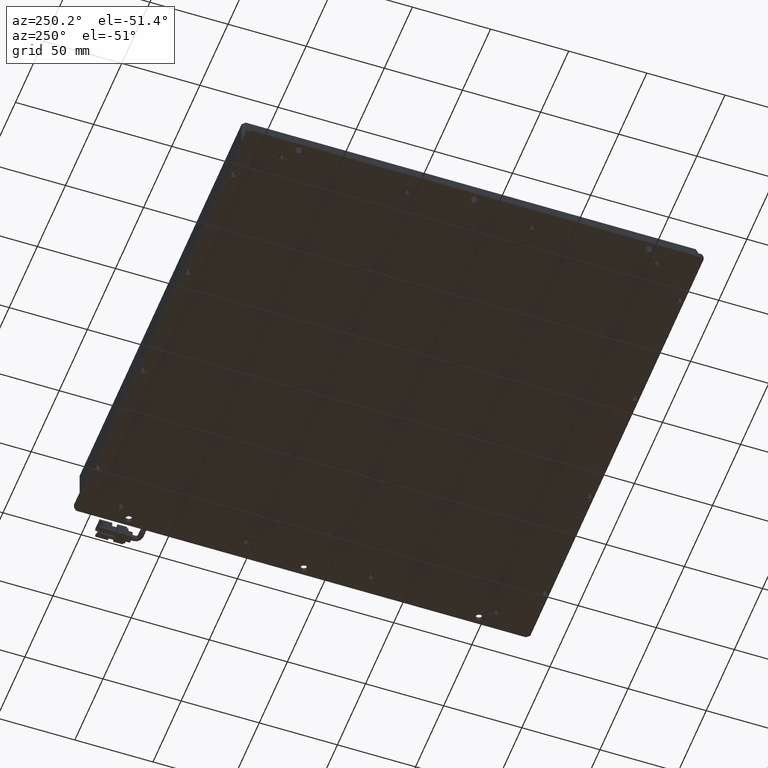
[diagram: clean part render]
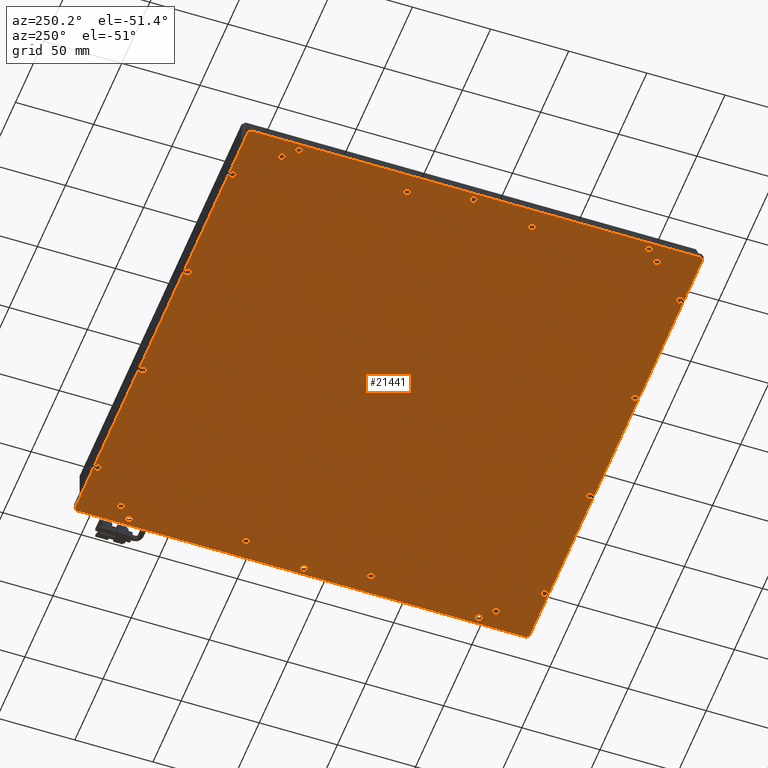
[diagram: same view with one face highlighted and labeled with its STEP entity id]
A machine part, auxiliary view. The second image highlights one B-rep face of the part: STEP entity #21441.
In plain terms, the highlighted planar face has unit normal (0, 0, -1).
Its self-contained STEP definition (entity closure, byte-faithful):
#33 = VERTEX_POINT ( 'NONE', #22639 ) ;
#111 = AXIS2_PLACEMENT_3D ( 'NONE', #13315, #4190, #17166 ) ;
#114 = EDGE_CURVE ( 'NONE', #14088, #4893, #14909, .T. ) ;
#115 = CARTESIAN_POINT ( 'NONE',  ( 75.11932287367429200, 156.2698045692266400, -10.00000000005456300 ) ) ;
#138 = CARTESIAN_POINT ( 'NONE',  ( -9.280677126315806500, -129.7301954307733600, -9.999999999971350900 ) ) ;
#198 = EDGE_CURVE ( 'NONE', #13900, #10766, #13440, .T. ) ;
#218 = AXIS2_PLACEMENT_3D ( 'NONE', #5789, #13150, #3948 ) ;
#233 = VERTEX_POINT ( 'NONE', #12751 ) ;
#279 = FACE_BOUND ( 'NONE', #16320, .T. ) ;
#315 = CARTESIAN_POINT ( 'NONE',  ( -84.88067712638391500, -129.7301954307733600, -10.00000000002819400 ) ) ;
#511 = VECTOR ( 'NONE', #12608, 1000.000000000000000 ) ;
#559 = CARTESIAN_POINT ( 'NONE',  ( -118.0806771263419100, 13.26980456922663400, -10.00000000002819400 ) ) ;
#572 = DIRECTION ( 'NONE',  ( -0.0000000000000000000, -0.0000000000000000000, 1.000000000000000000 ) ) ;
#595 = VERTEX_POINT ( 'NONE', #315 ) ;
#640 = EDGE_LOOP ( 'NONE', ( #19062, #3199 ) ) ;
#728 = CIRCLE ( 'NONE', #22733, 2.199999999982535500 ) ;
#870 = CARTESIAN_POINT ( 'NONE',  ( -112.2806771263244500, -106.7301954307733900, -10.00000000008503800 ) ) ;
#874 = FACE_BOUND ( 'NONE', #23639, .T. ) ;
#907 = DIRECTION ( 'NONE',  ( -0.0000000000000000000, -0.0000000000000000000, 1.000000000000000000 ) ) ;
#983 = EDGE_CURVE ( 'NONE', #4893, #14088, #8795, .T. ) ;
#1077 = EDGE_CURVE ( 'NONE', #18001, #21614, #18825, .T. ) ;
#1113 = DIRECTION ( 'NONE',  ( 1.000000000000000000, 0.0000000000000000000, 0.0000000000000000000 ) ) ;
#1118 = VERTEX_POINT ( 'NONE', #1905 ) ;
#1126 = ORIENTED_EDGE ( 'NONE', *, *, #18610, .T. ) ;
#1136 = EDGE_CURVE ( 'NONE', #19636, #5223, #728, .T. ) ;
#1179 = ORIENTED_EDGE ( 'NONE', *, *, #10700, .T. ) ;
#1232 = AXIS2_PLACEMENT_3D ( 'NONE', #9703, #2259, #18709 ) ;
#1305 = CARTESIAN_POINT ( 'NONE',  ( 70.71932287364191400, 156.2698045692266400, -10.00000000005456300 ) ) ;
#1328 = EDGE_CURVE ( 'NONE', #15938, #2761, #8535, .T. ) ;
#1361 = EDGE_CURVE ( 'NONE', #14647, #6534, #20733, .T. ) ;
#1463 = DIRECTION ( 'NONE',  ( -0.0000000000000000000, -0.0000000000000000000, 1.000000000000000000 ) ) ;
#1510 = EDGE_LOOP ( 'NONE', ( #10976, #10475, #13249, #8589, #14624, #20474, #10749, #16338 ) ) ;
#1584 = DIRECTION ( 'NONE',  ( -0.0000000000000000000, -0.0000000000000000000, 1.000000000000000000 ) ) ;
#1667 = DIRECTION ( 'NONE',  ( -0.0000000000000000000, -0.0000000000000000000, 1.000000000000000000 ) ) ;
#1675 = CARTESIAN_POINT ( 'NONE',  ( -118.0806771263419100, 125.2698045692265900, -10.00000000002819400 ) ) ;
#1737 = CARTESIAN_POINT ( 'NONE',  ( -87.08067712634191100, 156.2698045692266400, -10.00000000002819400 ) ) ;
#1862 = DIRECTION ( 'NONE',  ( -0.0000000000000000000, -0.0000000000000000000, 1.000000000000000000 ) ) ;
#1889 = DIRECTION ( 'NONE',  ( 1.000000000000000000, 0.0000000000000000000, 0.0000000000000000000 ) ) ;
#1905 = CARTESIAN_POINT ( 'NONE',  ( -107.8806771263593700, -26.73019543077340300, -10.00000000008503800 ) ) ;
#1907 = EDGE_CURVE ( 'NONE', #233, #6625, #17148, .T. ) ;
#1920 = EDGE_CURVE ( 'NONE', #19191, #13776, #8553, .T. ) ;
#1947 = EDGE_CURVE ( 'NONE', #14647, #17118, #12292, .T. ) ;
#2001 = CIRCLE ( 'NONE', #17110, 2.199999999982535500 ) ;
#2006 = VECTOR ( 'NONE', #15774, 1000.000000000000100 ) ;
#2078 = LINE ( 'NONE', #15753, #21089 ) ;
#2159 = ORIENTED_EDGE ( 'NONE', *, *, #6681, .T. ) ;
#2231 = CARTESIAN_POINT ( 'NONE',  ( -120.3306771263419000, -98.73019543077346300, -10.00000000002819400 ) ) ;
#2259 = DIRECTION ( 'NONE',  ( -0.0000000000000000000, -0.0000000000000000000, 1.000000000000000000 ) ) ;
#2296 = FACE_BOUND ( 'NONE', #5349, .T. ) ;
#2371 = CARTESIAN_POINT ( 'NONE',  ( 186.1693228736580700, 125.2698045692265400, -10.00000000002819400 ) ) ;
#2389 = EDGE_CURVE ( 'NONE', #17327, #19798, #23248, .T. ) ;
#2568 = LINE ( 'NONE', #17055, #11731 ) ;
#2604 = EDGE_CURVE ( 'NONE', #19798, #17327, #21733, .T. ) ;
#2614 = DIRECTION ( 'NONE',  ( -1.000000000000000000, 0.0000000000000000000, 0.0000000000000000000 ) ) ;
#2663 = ORIENTED_EDGE ( 'NONE', *, *, #7825, .T. ) ;
#2731 = AXIS2_PLACEMENT_3D ( 'NONE', #7933, #2968, #6328 ) ;
#2759 = CARTESIAN_POINT ( 'NONE',  ( 183.9193228736580700, 125.2698045692265400, -10.00000000002819400 ) ) ;
#2761 = VERTEX_POINT ( 'NONE', #22866 ) ;
#2776 = CARTESIAN_POINT ( 'NONE',  ( 173.7193228737555700, -26.73019543077340300, -10.00000000000637900 ) ) ;
#2799 = DIRECTION ( 'NONE',  ( -0.0000000000000000000, -0.0000000000000000000, 1.000000000000000000 ) ) ;
#2812 = CARTESIAN_POINT ( 'NONE',  ( -107.8806771263593700, 53.26980456922658600, -10.00000000008503800 ) ) ;
#2833 = DIRECTION ( 'NONE',  ( -0.0000000000000000000, -0.0000000000000000000, 1.000000000000000000 ) ) ;
#2887 = FACE_BOUND ( 'NONE', #19003, .T. ) ;
#2922 = EDGE_LOOP ( 'NONE', ( #19330, #4560 ) ) ;
#2968 = DIRECTION ( 'NONE',  ( -0.0000000000000000000, -0.0000000000000000000, 1.000000000000000000 ) ) ;
#3142 = EDGE_CURVE ( 'NONE', #21614, #18001, #3537, .T. ) ;
#3188 = AXIS2_PLACEMENT_3D ( 'NONE', #13638, #572, #15248 ) ;
#3199 = ORIENTED_EDGE ( 'NONE', *, *, #13912, .T. ) ;
#3347 = CARTESIAN_POINT ( 'NONE',  ( -123.0806771263419100, -132.2301954307733600, -10.00000000002819400 ) ) ;
#3443 = CARTESIAN_POINT ( 'NONE',  ( -4.880677126368027500, 156.2698045692266400, -9.999999999971350900 ) ) ;
#3483 = EDGE_LOOP ( 'NONE', ( #4497, #14216 ) ) ;
#3517 = DIRECTION ( 'NONE',  ( -1.000000000000000000, 0.0000000000000000000, 0.0000000000000000000 ) ) ;
#3537 = CIRCLE ( 'NONE', #12537, 2.249999999999974200 ) ;
#3541 = ORIENTED_EDGE ( 'NONE', *, *, #18373, .T. ) ;
#3546 = DIRECTION ( 'NONE',  ( -1.000000000000000000, 0.0000000000000000000, -0.0000000000000000000 ) ) ;
#3553 = CARTESIAN_POINT ( 'NONE',  ( 186.1693228736580700, -98.73019543077344900, -10.00000000002819400 ) ) ;
#3560 = CARTESIAN_POINT ( 'NONE',  ( -112.2806771263244500, -26.73019543077340300, -10.00000000008503800 ) ) ;
#3612 = CIRCLE ( 'NONE', #16312, 2.200000000016189000 ) ;
#3664 = AXIS2_PLACEMENT_3D ( 'NONE', #23003, #2799, #11690 ) ;
#3897 = CARTESIAN_POINT ( 'NONE',  ( -122.5806771263419300, -130.5230886495868400, -10.00000000002819400 ) ) ;
#3948 = DIRECTION ( 'NONE',  ( -1.000000000000000000, 0.0000000000000000000, 0.0000000000000000000 ) ) ;
#4022 = DIRECTION ( 'NONE',  ( -1.000000000000000000, 0.0000000000000000000, 0.0000000000000000000 ) ) ;
#4124 = DIRECTION ( 'NONE',  ( 1.000000000000000000, 0.0000000000000000000, 0.0000000000000000000 ) ) ;
#4190 = DIRECTION ( 'NONE',  ( -0.0000000000000000000, -0.0000000000000000000, 1.000000000000000000 ) ) ;
#4309 = EDGE_CURVE ( 'NONE', #17943, #4719, #20151, .T. ) ;
#4449 = DIRECTION ( 'NONE',  ( -0.0000000000000000000, -0.0000000000000000000, 1.000000000000000000 ) ) ;
#4497 = ORIENTED_EDGE ( 'NONE', *, *, #14168, .T. ) ;
#4508 = DIRECTION ( 'NONE',  ( 1.000000000000000000, 0.0000000000000000000, 0.0000000000000000000 ) ) ;
#4519 = AXIS2_PLACEMENT_3D ( 'NONE', #12725, #9122, #22090 ) ;
#4560 = ORIENTED_EDGE ( 'NONE', *, *, #21964, .T. ) ;
#4563 = LINE ( 'NONE', #14916, #11435 ) ;
#4579 = CARTESIAN_POINT ( 'NONE',  ( -7.080677126341916100, -129.7301954307733600, -9.999999999971350900 ) ) ;
#4598 = FACE_BOUND ( 'NONE', #8014, .T. ) ;
#4629 = VERTEX_POINT ( 'NONE', #10198 ) ;
#4649 = VERTEX_POINT ( 'NONE', #19462 ) ;
#4702 = DIRECTION ( 'NONE',  ( -0.7071067811865360300, 0.7071067811865589000, 1.724510377719932900E-014 ) ) ;
#4719 = VERTEX_POINT ( 'NONE', #3443 ) ;
#4893 = VERTEX_POINT ( 'NONE', #16428 ) ;
#4913 = CARTESIAN_POINT ( 'NONE',  ( -107.8806771263593700, -106.7301954307733900, -10.00000000008503800 ) ) ;
#5051 = AXIS2_PLACEMENT_3D ( 'NONE', #23594, #7151, #3546 ) ;
#5161 = FACE_BOUND ( 'NONE', #11560, .T. ) ;
#5163 = ORIENTED_EDGE ( 'NONE', *, *, #19862, .T. ) ;
#5199 = CARTESIAN_POINT ( 'NONE',  ( -122.5806771263419400, 157.0626977880401100, -10.00000000002819800 ) ) ;
#5223 = VERTEX_POINT ( 'NONE', #870 ) ;
#5337 = EDGE_LOOP ( 'NONE', ( #2663, #5504 ) ) ;
#5349 = EDGE_LOOP ( 'NONE', ( #19815, #6023 ) ) ;
#5380 = AXIS2_PLACEMENT_3D ( 'NONE', #22076, #7347, #1889 ) ;
#5388 = CARTESIAN_POINT ( 'NONE',  ( -110.0806771263419100, 133.2698045692266100, -10.00000000008503800 ) ) ;
#5402 = CARTESIAN_POINT ( 'NONE',  ( -110.0806771263419100, -106.7301954307733900, -10.00000000008503800 ) ) ;
#5504 = ORIENTED_EDGE ( 'NONE', *, *, #12968, .T. ) ;
#5620 = CARTESIAN_POINT ( 'NONE',  ( 183.9193228736580700, -98.73019543077344900, -10.00000000002819400 ) ) ;
#5691 = AXIS2_PLACEMENT_3D ( 'NONE', #18765, #7684, #7764 ) ;
#5717 = DIRECTION ( 'NONE',  ( -0.0000000000000000000, -0.0000000000000000000, 1.000000000000000000 ) ) ;
#5764 = AXIS2_PLACEMENT_3D ( 'NONE', #5620, #16750, #11161 ) ;
#5774 = ORIENTED_EDGE ( 'NONE', *, *, #13141, .T. ) ;
#5782 = EDGE_CURVE ( 'NONE', #17111, #9826, #10228, .T. ) ;
#5789 = CARTESIAN_POINT ( 'NONE',  ( 175.9193228736580700, -26.73019543077340300, -10.00000000000637900 ) ) ;
#5899 = DIRECTION ( 'NONE',  ( 1.000000000000000000, 0.0000000000000000000, 0.0000000000000000000 ) ) ;
#5941 = DIRECTION ( 'NONE',  ( 1.000000000000000000, 0.0000000000000000000, 0.0000000000000000000 ) ) ;
#5988 = VERTEX_POINT ( 'NONE', #14155 ) ;
#6020 = DIRECTION ( 'NONE',  ( -0.0000000000000000000, -0.0000000000000000000, 1.000000000000000000 ) ) ;
#6023 = ORIENTED_EDGE ( 'NONE', *, *, #1920, .T. ) ;
#6076 = AXIS2_PLACEMENT_3D ( 'NONE', #7564, #18786, #16762 ) ;
#6081 = DIRECTION ( 'NONE',  ( -0.7071067811865439100, -0.7071067811865512400, -4.625639815238161800E-015 ) ) ;
#6173 = CARTESIAN_POINT ( 'NONE',  ( -120.8735703451554300, 158.7698045692266400, -10.00000000002819600 ) ) ;
#6285 = ORIENTED_EDGE ( 'NONE', *, *, #22093, .T. ) ;
#6328 = DIRECTION ( 'NONE',  ( -1.000000000000000000, 0.0000000000000000000, 0.0000000000000000000 ) ) ;
#6335 = FACE_BOUND ( 'NONE', #19233, .T. ) ;
#6508 = AXIS2_PLACEMENT_3D ( 'NONE', #20949, #4449, #8055 ) ;
#6529 = DIRECTION ( 'NONE',  ( -1.000000000000000000, 0.0000000000000000000, 0.0000000000000000000 ) ) ;
#6534 = VERTEX_POINT ( 'NONE', #23302 ) ;
#6556 = AXIS2_PLACEMENT_3D ( 'NONE', #17745, #1463, #14278 ) ;
#6567 = DIRECTION ( 'NONE',  ( -0.0000000000000000000, -0.0000000000000000000, 1.000000000000000000 ) ) ;
#6569 = DIRECTION ( 'NONE',  ( -1.000000000000000000, 0.0000000000000000000, 0.0000000000000000000 ) ) ;
#6614 = VERTEX_POINT ( 'NONE', #10924 ) ;
#6624 = DIRECTION ( 'NONE',  ( -1.000000000000000000, 0.0000000000000000000, 0.0000000000000000000 ) ) ;
#6625 = VERTEX_POINT ( 'NONE', #16360 ) ;
#6677 = CARTESIAN_POINT ( 'NONE',  ( -110.0806771263419100, 53.26980456922658600, -10.00000000008503800 ) ) ;
#6679 = CARTESIAN_POINT ( 'NONE',  ( 70.71932287364191400, -129.7301954307733600, -10.00000000005456300 ) ) ;
#6681 = EDGE_CURVE ( 'NONE', #10497, #4629, #10704, .T. ) ;
#6701 = PLANE ( 'NONE',  #5051 ) ;
#6702 = AXIS2_PLACEMENT_3D ( 'NONE', #6937, #19799, #16171 ) ;
#6779 = CARTESIAN_POINT ( 'NONE',  ( 75.11932287367429200, -129.7301954307733600, -10.00000000005456300 ) ) ;
#6899 = FACE_BOUND ( 'NONE', #640, .T. ) ;
#6937 = CARTESIAN_POINT ( 'NONE',  ( 72.91932287365810300, 156.2698045692266400, -10.00000000005456300 ) ) ;
#6987 = EDGE_CURVE ( 'NONE', #23923, #12208, #23739, .T. ) ;
#7037 = ORIENTED_EDGE ( 'NONE', *, *, #14328, .T. ) ;
#7055 = DIRECTION ( 'NONE',  ( -0.0000000000000000000, -0.0000000000000000000, 1.000000000000000000 ) ) ;
#7148 = CIRCLE ( 'NONE', #218, 2.199999999902502200 ) ;
#7151 = DIRECTION ( 'NONE',  ( 0.0000000000000000000, 0.0000000000000000000, -1.000000000000000000 ) ) ;
#7198 = DIRECTION ( 'NONE',  ( -1.000000000000000000, 0.0000000000000000000, 0.0000000000000000000 ) ) ;
#7246 = AXIS2_PLACEMENT_3D ( 'NONE', #1675, #7055, #21720 ) ;
#7263 = DIRECTION ( 'NONE',  ( -1.000000000000000000, 0.0000000000000000000, 0.0000000000000000000 ) ) ;
#7320 = DIRECTION ( 'NONE',  ( -1.000000000000000000, 0.0000000000000000000, 0.0000000000000000000 ) ) ;
#7347 = DIRECTION ( 'NONE',  ( -0.0000000000000000000, -0.0000000000000000000, 1.000000000000000000 ) ) ;
#7411 = CIRCLE ( 'NONE', #17518, 2.199999999982535500 ) ;
#7429 = EDGE_CURVE ( 'NONE', #33, #4649, #10979, .T. ) ;
#7434 = AXIS2_PLACEMENT_3D ( 'NONE', #21212, #17391, #13922 ) ;
#7450 = DIRECTION ( 'NONE',  ( -0.0000000000000000000, -0.0000000000000000000, 1.000000000000000000 ) ) ;
#7496 = DIRECTION ( 'NONE',  ( -0.0000000000000000000, -0.0000000000000000000, 1.000000000000000000 ) ) ;
#7507 = EDGE_CURVE ( 'NONE', #4719, #17943, #21110, .T. ) ;
#7564 = CARTESIAN_POINT ( 'NONE',  ( -118.0806771263419100, 125.2698045692265900, -10.00000000002819400 ) ) ;
#7684 = DIRECTION ( 'NONE',  ( -0.0000000000000000000, -0.0000000000000000000, 1.000000000000000000 ) ) ;
#7728 = CARTESIAN_POINT ( 'NONE',  ( -115.8306771263419100, 125.2698045692265900, -10.00000000002819400 ) ) ;
#7764 = DIRECTION ( 'NONE',  ( -1.000000000000000000, 0.0000000000000000000, 0.0000000000000000000 ) ) ;
#7815 = AXIS2_PLACEMENT_3D ( 'NONE', #10163, #6567, #12017 ) ;
#7819 = VERTEX_POINT ( 'NONE', #7728 ) ;
#7825 = EDGE_CURVE ( 'NONE', #16659, #14536, #21927, .T. ) ;
#7831 = EDGE_LOOP ( 'NONE', ( #17359, #22850 ) ) ;
#7933 = CARTESIAN_POINT ( 'NONE',  ( 175.9193228736580700, -26.73019543077340300, -10.00000000000637900 ) ) ;
#7957 = CARTESIAN_POINT ( 'NONE',  ( -112.2806771263244500, 53.26980456922658600, -10.00000000008503800 ) ) ;
#7958 = DIRECTION ( 'NONE',  ( -0.0000000000000000000, -1.000000000000000000, -0.0000000000000000000 ) ) ;
#8011 = EDGE_LOOP ( 'NONE', ( #15537, #20985 ) ) ;
#8014 = EDGE_LOOP ( 'NONE', ( #23255, #3541 ) ) ;
#8055 = DIRECTION ( 'NONE',  ( -1.000000000000000000, 0.0000000000000000000, 0.0000000000000000000 ) ) ;
#8107 = CARTESIAN_POINT ( 'NONE',  ( -118.0806771263419100, -98.73019543077346300, -10.00000000002819400 ) ) ;
#8161 = CARTESIAN_POINT ( 'NONE',  ( -123.0806771263419100, 158.7698045692266400, -10.00000000002819400 ) ) ;
#8181 = ORIENTED_EDGE ( 'NONE', *, *, #23851, .T. ) ;
#8208 = AXIS2_PLACEMENT_3D ( 'NONE', #17684, #11993, #10379 ) ;
#8326 = CARTESIAN_POINT ( 'NONE',  ( -122.5806771263419100, -130.5230886495868700, -10.00000000002819400 ) ) ;
#8359 = DIRECTION ( 'NONE',  ( -1.000000000000000000, 0.0000000000000000000, 0.0000000000000000000 ) ) ;
#8389 = EDGE_CURVE ( 'NONE', #9826, #17118, #2568, .T. ) ;
#8500 = ORIENTED_EDGE ( 'NONE', *, *, #2604, .T. ) ;
#8506 = DIRECTION ( 'NONE',  ( -1.000000000000000000, 0.0000000000000000000, 0.0000000000000000000 ) ) ;
#8535 = CIRCLE ( 'NONE', #7434, 2.199999999902502200 ) ;
#8548 = CIRCLE ( 'NONE', #8208, 2.199999999959345600 ) ;
#8553 = CIRCLE ( 'NONE', #6702, 2.200000000016189000 ) ;
#8589 = ORIENTED_EDGE ( 'NONE', *, *, #16799, .F. ) ;
#8638 = ORIENTED_EDGE ( 'NONE', *, *, #1077, .T. ) ;
#8703 = DIRECTION ( 'NONE',  ( -0.0000000000000000000, -0.0000000000000000000, 1.000000000000000000 ) ) ;
#8757 = CARTESIAN_POINT ( 'NONE',  ( 188.4193228736581000, -130.5230886495869000, -10.00000000002819600 ) ) ;
#8795 = CIRCLE ( 'NONE', #23638, 2.199999999973889500 ) ;
#8926 = AXIS2_PLACEMENT_3D ( 'NONE', #18444, #7450, #20334 ) ;
#8928 = DIRECTION ( 'NONE',  ( -1.000000000000000000, 0.0000000000000000000, 0.0000000000000000000 ) ) ;
#9122 = DIRECTION ( 'NONE',  ( -0.0000000000000000000, -0.0000000000000000000, 1.000000000000000000 ) ) ;
#9325 = DIRECTION ( 'NONE',  ( -0.0000000000000000000, -0.0000000000000000000, 1.000000000000000000 ) ) ;
#9414 = CIRCLE ( 'NONE', #111, 2.199999999902502200 ) ;
#9448 = EDGE_LOOP ( 'NONE', ( #8500, #17873 ) ) ;
#9471 = CARTESIAN_POINT ( 'NONE',  ( -110.0806771263419100, 133.2698045692266100, -10.00000000008503800 ) ) ;
#9474 = FACE_BOUND ( 'NONE', #17254, .T. ) ;
#9551 = ORIENTED_EDGE ( 'NONE', *, *, #7429, .T. ) ;
#9628 = DIRECTION ( 'NONE',  ( -1.000000000000000000, 0.0000000000000000000, 0.0000000000000000000 ) ) ;
#9677 = EDGE_CURVE ( 'NONE', #20489, #19314, #18140, .T. ) ;
#9699 = CIRCLE ( 'NONE', #1232, 2.199999999902502200 ) ;
#9703 = CARTESIAN_POINT ( 'NONE',  ( 175.9193228736580700, 53.26980456922658600, -10.00000000000637900 ) ) ;
#9742 = FACE_BOUND ( 'NONE', #11677, .T. ) ;
#9773 = AXIS2_PLACEMENT_3D ( 'NONE', #5402, #23631, #21621 ) ;
#9826 = VERTEX_POINT ( 'NONE', #6173 ) ;
#9830 = VERTEX_POINT ( 'NONE', #22604 ) ;
#9878 = DIRECTION ( 'NONE',  ( -0.0000000000000000000, -0.0000000000000000000, 1.000000000000000000 ) ) ;
#9950 = DIRECTION ( 'NONE',  ( -0.0000000000000000000, -0.0000000000000000000, 1.000000000000000000 ) ) ;
#10045 = AXIS2_PLACEMENT_3D ( 'NONE', #5388, #18240, #7263 ) ;
#10047 = FACE_BOUND ( 'NONE', #5337, .T. ) ;
#10163 = CARTESIAN_POINT ( 'NONE',  ( -7.080677126341916100, 156.2698045692266400, -9.999999999971350900 ) ) ;
#10189 = VERTEX_POINT ( 'NONE', #19498 ) ;
#10198 = CARTESIAN_POINT ( 'NONE',  ( -120.3306771263419000, 13.26980456922663400, -10.00000000002819400 ) ) ;
#10199 = CIRCLE ( 'NONE', #22727, 2.199999999959345600 ) ;
#10228 = LINE ( 'NONE', #8161, #19448 ) ;
#10250 = VERTEX_POINT ( 'NONE', #19964 ) ;
#10265 = CARTESIAN_POINT ( 'NONE',  ( -118.0806771263419100, -98.73019543077346300, -10.00000000002819400 ) ) ;
#10349 = EDGE_CURVE ( 'NONE', #1118, #23696, #2001, .T. ) ;
#10379 = DIRECTION ( 'NONE',  ( -1.000000000000000000, 0.0000000000000000000, 0.0000000000000000000 ) ) ;
#10452 = AXIS2_PLACEMENT_3D ( 'NONE', #19543, #907, #6529 ) ;
#10475 = ORIENTED_EDGE ( 'NONE', *, *, #23372, .F. ) ;
#10497 = VERTEX_POINT ( 'NONE', #18968 ) ;
#10700 = EDGE_CURVE ( 'NONE', #6614, #10189, #8548, .T. ) ;
#10704 = CIRCLE ( 'NONE', #23710, 2.249999999999988000 ) ;
#10749 = ORIENTED_EDGE ( 'NONE', *, *, #1947, .T. ) ;
#10766 = VERTEX_POINT ( 'NONE', #6779 ) ;
#10853 = ORIENTED_EDGE ( 'NONE', *, *, #6987, .T. ) ;
#10875 = CIRCLE ( 'NONE', #6076, 2.249999999999988000 ) ;
#10885 = CIRCLE ( 'NONE', #16278, 2.199999999902502200 ) ;
#10924 = CARTESIAN_POINT ( 'NONE',  ( 155.1193228736173900, 156.2698045692266400, -10.00000000003868500 ) ) ;
#10958 = CARTESIAN_POINT ( 'NONE',  ( -9.280677126315806500, 156.2698045692266400, -9.999999999971350900 ) ) ;
#10976 = ORIENTED_EDGE ( 'NONE', *, *, #5782, .F. ) ;
#10979 = CIRCLE ( 'NONE', #3664, 2.199999999959345600 ) ;
#11161 = DIRECTION ( 'NONE',  ( 1.000000000000000000, 0.0000000000000000000, 0.0000000000000000000 ) ) ;
#11190 = ORIENTED_EDGE ( 'NONE', *, *, #9677, .T. ) ;
#11305 = ORIENTED_EDGE ( 'NONE', *, *, #1907, .T. ) ;
#11331 = DIRECTION ( 'NONE',  ( -0.0000000000000000000, -0.0000000000000000000, 1.000000000000000000 ) ) ;
#11360 = AXIS2_PLACEMENT_3D ( 'NONE', #16538, #7496, #5899 ) ;
#11398 = DIRECTION ( 'NONE',  ( 1.000000000000000000, 0.0000000000000000000, 0.0000000000000000000 ) ) ;
#11410 = CARTESIAN_POINT ( 'NONE',  ( -7.080677126341916100, 156.2698045692266400, -9.999999999971350900 ) ) ;
#11435 = VECTOR ( 'NONE', #13077, 1000.000000000000000 ) ;
#11560 = EDGE_LOOP ( 'NONE', ( #8638, #14028 ) ) ;
#11570 = EDGE_CURVE ( 'NONE', #18711, #22492, #23779, .T. ) ;
#11677 = EDGE_LOOP ( 'NONE', ( #8181, #9551 ) ) ;
#11690 = DIRECTION ( 'NONE',  ( -1.000000000000000000, 0.0000000000000000000, 0.0000000000000000000 ) ) ;
#11722 = CARTESIAN_POINT ( 'NONE',  ( 188.4193228736581000, 159.2698045692266400, -10.00000000002819400 ) ) ;
#11731 = VECTOR ( 'NONE', #6081, 1000.000000000000000 ) ;
#11969 = AXIS2_PLACEMENT_3D ( 'NONE', #6677, #17483, #8506 ) ;
#11993 = DIRECTION ( 'NONE',  ( -0.0000000000000000000, -0.0000000000000000000, 1.000000000000000000 ) ) ;
#12017 = DIRECTION ( 'NONE',  ( -1.000000000000000000, 0.0000000000000000000, 0.0000000000000000000 ) ) ;
#12074 = CARTESIAN_POINT ( 'NONE',  ( -87.08067712634191100, 156.2698045692266400, -10.00000000002819400 ) ) ;
#12111 = DIRECTION ( 'NONE',  ( -0.0000000000000000000, -0.0000000000000000000, 1.000000000000000000 ) ) ;
#12122 = EDGE_CURVE ( 'NONE', #21301, #22322, #19649, .T. ) ;
#12199 = CIRCLE ( 'NONE', #17707, 2.199999999957985800 ) ;
#12208 = VERTEX_POINT ( 'NONE', #2812 ) ;
#12292 = LINE ( 'NONE', #19958, #511 ) ;
#12334 = AXIS2_PLACEMENT_3D ( 'NONE', #14523, #23912, #23764 ) ;
#12374 = CARTESIAN_POINT ( 'NONE',  ( 186.1693228736580700, 13.26980456922655100, -10.00000000002819400 ) ) ;
#12537 = AXIS2_PLACEMENT_3D ( 'NONE', #2759, #2833, #4508 ) ;
#12608 = DIRECTION ( 'NONE',  ( 0.0000000000000000000, 1.000000000000000000, 0.0000000000000000000 ) ) ;
#12611 = FACE_BOUND ( 'NONE', #17957, .T. ) ;
#12640 = CARTESIAN_POINT ( 'NONE',  ( -110.0806771263419100, -106.7301954307733900, -10.00000000008503800 ) ) ;
#12725 = CARTESIAN_POINT ( 'NONE',  ( 183.9193228736580700, 125.2698045692265400, -10.00000000002819400 ) ) ;
#12733 = CIRCLE ( 'NONE', #19903, 2.249999999999988000 ) ;
#12751 = CARTESIAN_POINT ( 'NONE',  ( -112.2806771263244500, 133.2698045692266100, -10.00000000008503800 ) ) ;
#12803 = AXIS2_PLACEMENT_3D ( 'NONE', #12074, #17513, #6624 ) ;
#12968 = EDGE_CURVE ( 'NONE', #14536, #16659, #23924, .T. ) ;
#13077 = DIRECTION ( 'NONE',  ( 0.7071067811865383600, 0.7071067811865566800, -1.149673585146626000E-014 ) ) ;
#13079 = AXIS2_PLACEMENT_3D ( 'NONE', #4579, #9878, #22889 ) ;
#13141 = EDGE_CURVE ( 'NONE', #18841, #5988, #19819, .T. ) ;
#13150 = DIRECTION ( 'NONE',  ( -0.0000000000000000000, -0.0000000000000000000, 1.000000000000000000 ) ) ;
#13170 = DIRECTION ( 'NONE',  ( -0.0000000000000000000, -0.0000000000000000000, 1.000000000000000000 ) ) ;
#13249 = ORIENTED_EDGE ( 'NONE', *, *, #11570, .T. ) ;
#13315 = CARTESIAN_POINT ( 'NONE',  ( 175.9193228736580700, 133.2698045692266100, -10.00000000000637900 ) ) ;
#13351 = EDGE_LOOP ( 'NONE', ( #20143, #14001 ) ) ;
#13440 = CIRCLE ( 'NONE', #17550, 2.200000000016189000 ) ;
#13575 = CARTESIAN_POINT ( 'NONE',  ( -110.0806771263419100, -26.73019543077340300, -10.00000000008503800 ) ) ;
#13592 = LINE ( 'NONE', #3347, #20853 ) ;
#13638 = CARTESIAN_POINT ( 'NONE',  ( 152.9193228736580500, -129.7301954307733600, -10.00000000003868500 ) ) ;
#13776 = VERTEX_POINT ( 'NONE', #1305 ) ;
#13846 = AXIS2_PLACEMENT_3D ( 'NONE', #10265, #12111, #1113 ) ;
#13900 = VERTEX_POINT ( 'NONE', #6679 ) ;
#13902 = AXIS2_PLACEMENT_3D ( 'NONE', #9471, #9325, #9628 ) ;
#13912 = EDGE_CURVE ( 'NONE', #22918, #7819, #13939, .T. ) ;
#13922 = DIRECTION ( 'NONE',  ( -1.000000000000000000, 0.0000000000000000000, 0.0000000000000000000 ) ) ;
#13939 = CIRCLE ( 'NONE', #7246, 2.249999999999988000 ) ;
#14001 = ORIENTED_EDGE ( 'NONE', *, *, #10349, .T. ) ;
#14028 = ORIENTED_EDGE ( 'NONE', *, *, #3142, .T. ) ;
#14055 = EDGE_CURVE ( 'NONE', #17298, #595, #20897, .T. ) ;
#14088 = VERTEX_POINT ( 'NONE', #138 ) ;
#14130 = ORIENTED_EDGE ( 'NONE', *, *, #17978, .T. ) ;
#14155 = CARTESIAN_POINT ( 'NONE',  ( 173.7193228737555700, 133.2698045692266100, -10.00000000000637900 ) ) ;
#14168 = EDGE_CURVE ( 'NONE', #21865, #23391, #18232, .T. ) ;
#14216 = ORIENTED_EDGE ( 'NONE', *, *, #22119, .T. ) ;
#14264 = CARTESIAN_POINT ( 'NONE',  ( 186.7122160924718100, 158.7698045692266400, -10.00000000002818900 ) ) ;
#14278 = DIRECTION ( 'NONE',  ( 1.000000000000000000, 0.0000000000000000000, 0.0000000000000000000 ) ) ;
#14328 = EDGE_CURVE ( 'NONE', #10189, #6614, #10199, .T. ) ;
#14365 = CARTESIAN_POINT ( 'NONE',  ( 175.9193228736580700, -106.7301954307733900, -10.00000000000637900 ) ) ;
#14523 = CARTESIAN_POINT ( 'NONE',  ( 72.91932287365810300, 156.2698045692266400, -10.00000000005456300 ) ) ;
#14536 = VERTEX_POINT ( 'NONE', #20220 ) ;
#14614 = FACE_BOUND ( 'NONE', #2922, .T. ) ;
#14624 = ORIENTED_EDGE ( 'NONE', *, *, #22988, .F. ) ;
#14647 = VERTEX_POINT ( 'NONE', #3897 ) ;
#14670 = ORIENTED_EDGE ( 'NONE', *, *, #19928, .T. ) ;
#14696 = EDGE_CURVE ( 'NONE', #23696, #1118, #16185, .T. ) ;
#14742 = CARTESIAN_POINT ( 'NONE',  ( -89.28067712629989200, -129.7301954307733600, -10.00000000002819400 ) ) ;
#14909 = CIRCLE ( 'NONE', #13079, 2.199999999973889500 ) ;
#14916 = CARTESIAN_POINT ( 'NONE',  ( 186.7122160924716900, -132.2301954307733400, -10.00000000002817100 ) ) ;
#14917 = FACE_BOUND ( 'NONE', #15502, .T. ) ;
#14931 = DIRECTION ( 'NONE',  ( -1.000000000000000000, 0.0000000000000000000, 0.0000000000000000000 ) ) ;
#14940 = CARTESIAN_POINT ( 'NONE',  ( -110.0806771263419100, -26.73019543077340300, -10.00000000008503800 ) ) ;
#15003 = CARTESIAN_POINT ( 'NONE',  ( -110.0806771263419100, 53.26980456922658600, -10.00000000008503800 ) ) ;
#15017 = DIRECTION ( 'NONE',  ( -0.0000000000000000000, -0.0000000000000000000, 1.000000000000000000 ) ) ;
#15220 = EDGE_LOOP ( 'NONE', ( #21725, #5163 ) ) ;
#15248 = DIRECTION ( 'NONE',  ( -1.000000000000000000, 0.0000000000000000000, 0.0000000000000000000 ) ) ;
#15383 = CARTESIAN_POINT ( 'NONE',  ( 178.1193228735605800, 133.2698045692266100, -10.00000000000637900 ) ) ;
#15473 = CARTESIAN_POINT ( 'NONE',  ( 188.4193228736581000, 157.0626977880402800, -10.00000000002820000 ) ) ;
#15502 = EDGE_LOOP ( 'NONE', ( #11305, #14670 ) ) ;
#15516 = CIRCLE ( 'NONE', #3188, 2.199999999959345600 ) ;
#15534 = DIRECTION ( 'NONE',  ( -0.0000000000000000000, -0.0000000000000000000, 1.000000000000000000 ) ) ;
#15537 = ORIENTED_EDGE ( 'NONE', *, *, #23048, .T. ) ;
#15674 = CARTESIAN_POINT ( 'NONE',  ( 178.1193228735605800, 53.26980456922658600, -10.00000000000637900 ) ) ;
#15723 = CARTESIAN_POINT ( 'NONE',  ( 178.1193228735605800, -26.73019543077340300, -10.00000000000637900 ) ) ;
#15753 = CARTESIAN_POINT ( 'NONE',  ( 188.4193228736581300, 157.0626977880401100, -10.00000000002823700 ) ) ;
#15774 = DIRECTION ( 'NONE',  ( 0.7071067811865461300, -0.7071067811865489100, 5.748367925732748000E-015 ) ) ;
#15785 = FACE_BOUND ( 'NONE', #3483, .T. ) ;
#15796 = CARTESIAN_POINT ( 'NONE',  ( -7.080677126341916100, -129.7301954307733600, -9.999999999971350900 ) ) ;
#15938 = VERTEX_POINT ( 'NONE', #17293 ) ;
#16064 = EDGE_CURVE ( 'NONE', #5223, #19636, #22521, .T. ) ;
#16104 = ORIENTED_EDGE ( 'NONE', *, *, #983, .T. ) ;
#16171 = DIRECTION ( 'NONE',  ( -1.000000000000000000, 0.0000000000000000000, 0.0000000000000000000 ) ) ;
#16185 = CIRCLE ( 'NONE', #16791, 2.199999999982535500 ) ;
#16278 = AXIS2_PLACEMENT_3D ( 'NONE', #14365, #8703, #8928 ) ;
#16312 = AXIS2_PLACEMENT_3D ( 'NONE', #20085, #1862, #7320 ) ;
#16320 = EDGE_LOOP ( 'NONE', ( #18970, #5774 ) ) ;
#16338 = ORIENTED_EDGE ( 'NONE', *, *, #8389, .F. ) ;
#16360 = CARTESIAN_POINT ( 'NONE',  ( -107.8806771263593700, 133.2698045692266100, -10.00000000008503800 ) ) ;
#16428 = CARTESIAN_POINT ( 'NONE',  ( -4.880677126368027500, -129.7301954307733600, -9.999999999971350900 ) ) ;
#16441 = AXIS2_PLACEMENT_3D ( 'NONE', #11410, #5717, #14931 ) ;
#16538 = CARTESIAN_POINT ( 'NONE',  ( 183.9193228736580700, 13.26980456922655100, -10.00000000002819400 ) ) ;
#16604 = CARTESIAN_POINT ( 'NONE',  ( 183.9193228736580700, 13.26980456922655100, -10.00000000002819400 ) ) ;
#16659 = VERTEX_POINT ( 'NONE', #12374 ) ;
#16750 = DIRECTION ( 'NONE',  ( -0.0000000000000000000, -0.0000000000000000000, 1.000000000000000000 ) ) ;
#16762 = DIRECTION ( 'NONE',  ( 1.000000000000000000, 0.0000000000000000000, 0.0000000000000000000 ) ) ;
#16791 = AXIS2_PLACEMENT_3D ( 'NONE', #13575, #19142, #2614 ) ;
#16799 = EDGE_CURVE ( 'NONE', #9830, #22492, #4563, .T. ) ;
#16933 = EDGE_CURVE ( 'NONE', #5988, #18841, #9414, .T. ) ;
#17055 = CARTESIAN_POINT ( 'NONE',  ( -120.8735703451554400, 158.7698045692266400, -10.00000000002819800 ) ) ;
#17110 = AXIS2_PLACEMENT_3D ( 'NONE', #14940, #13170, #22397 ) ;
#17111 = VERTEX_POINT ( 'NONE', #14264 ) ;
#17118 = VERTEX_POINT ( 'NONE', #5199 ) ;
#17148 = CIRCLE ( 'NONE', #10045, 2.199999999982535500 ) ;
#17166 = DIRECTION ( 'NONE',  ( -1.000000000000000000, 0.0000000000000000000, 0.0000000000000000000 ) ) ;
#17254 = EDGE_LOOP ( 'NONE', ( #23646, #16104 ) ) ;
#17293 = CARTESIAN_POINT ( 'NONE',  ( 173.7193228737555700, -106.7301954307733900, -10.00000000000637900 ) ) ;
#17298 = VERTEX_POINT ( 'NONE', #14742 ) ;
#17327 = VERTEX_POINT ( 'NONE', #20567 ) ;
#17359 = ORIENTED_EDGE ( 'NONE', *, *, #16064, .T. ) ;
#17371 = CIRCLE ( 'NONE', #12334, 2.200000000016189000 ) ;
#17391 = DIRECTION ( 'NONE',  ( -0.0000000000000000000, -0.0000000000000000000, 1.000000000000000000 ) ) ;
#17483 = DIRECTION ( 'NONE',  ( -0.0000000000000000000, -0.0000000000000000000, 1.000000000000000000 ) ) ;
#17507 = FACE_BOUND ( 'NONE', #15220, .T. ) ;
#17513 = DIRECTION ( 'NONE',  ( -0.0000000000000000000, -0.0000000000000000000, 1.000000000000000000 ) ) ;
#17518 = AXIS2_PLACEMENT_3D ( 'NONE', #15003, #18626, #4022 ) ;
#17550 = AXIS2_PLACEMENT_3D ( 'NONE', #21007, #9950, #8359 ) ;
#17684 = CARTESIAN_POINT ( 'NONE',  ( 152.9193228736580500, 156.2698045692266400, -10.00000000003868500 ) ) ;
#17707 = AXIS2_PLACEMENT_3D ( 'NONE', #1737, #1584, #7198 ) ;
#17745 = CARTESIAN_POINT ( 'NONE',  ( 183.9193228736580700, -98.73019543077344900, -10.00000000002819400 ) ) ;
#17870 = CARTESIAN_POINT ( 'NONE',  ( -120.3306771263419000, 125.2698045692265900, -10.00000000002819400 ) ) ;
#17873 = ORIENTED_EDGE ( 'NONE', *, *, #2389, .T. ) ;
#17943 = VERTEX_POINT ( 'NONE', #10958 ) ;
#17957 = EDGE_LOOP ( 'NONE', ( #7037, #1179 ) ) ;
#17978 = EDGE_CURVE ( 'NONE', #4629, #10497, #20344, .T. ) ;
#18001 = VERTEX_POINT ( 'NONE', #2371 ) ;
#18077 = FACE_BOUND ( 'NONE', #8011, .T. ) ;
#18140 = CIRCLE ( 'NONE', #13846, 2.249999999999988000 ) ;
#18183 = EDGE_CURVE ( 'NONE', #595, #17298, #20591, .T. ) ;
#18232 = CIRCLE ( 'NONE', #5691, 2.199999999902502200 ) ;
#18240 = DIRECTION ( 'NONE',  ( -0.0000000000000000000, -0.0000000000000000000, 1.000000000000000000 ) ) ;
#18351 = EDGE_CURVE ( 'NONE', #13776, #19191, #17371, .T. ) ;
#18373 = EDGE_CURVE ( 'NONE', #10766, #13900, #3612, .T. ) ;
#18444 = CARTESIAN_POINT ( 'NONE',  ( -87.08067712634191100, -129.7301954307733600, -10.00000000002819400 ) ) ;
#18610 = EDGE_CURVE ( 'NONE', #19314, #20489, #12733, .T. ) ;
#18626 = DIRECTION ( 'NONE',  ( -0.0000000000000000000, -0.0000000000000000000, 1.000000000000000000 ) ) ;
#18662 = FACE_OUTER_BOUND ( 'NONE', #1510, .T. ) ;
#18692 = EDGE_LOOP ( 'NONE', ( #19836, #21359 ) ) ;
#18709 = DIRECTION ( 'NONE',  ( -1.000000000000000000, 0.0000000000000000000, 0.0000000000000000000 ) ) ;
#18711 = VERTEX_POINT ( 'NONE', #15473 ) ;
#18765 = CARTESIAN_POINT ( 'NONE',  ( 175.9193228736580700, 53.26980456922658600, -10.00000000000637900 ) ) ;
#18786 = DIRECTION ( 'NONE',  ( -0.0000000000000000000, -0.0000000000000000000, 1.000000000000000000 ) ) ;
#18825 = CIRCLE ( 'NONE', #4519, 2.249999999999974200 ) ;
#18841 = VERTEX_POINT ( 'NONE', #15383 ) ;
#18968 = CARTESIAN_POINT ( 'NONE',  ( -115.8306771263419100, 13.26980456922663400, -10.00000000002819400 ) ) ;
#18970 = ORIENTED_EDGE ( 'NONE', *, *, #16933, .T. ) ;
#19003 = EDGE_LOOP ( 'NONE', ( #1126, #11190 ) ) ;
#19062 = ORIENTED_EDGE ( 'NONE', *, *, #19939, .T. ) ;
#19142 = DIRECTION ( 'NONE',  ( -0.0000000000000000000, -0.0000000000000000000, 1.000000000000000000 ) ) ;
#19191 = VERTEX_POINT ( 'NONE', #115 ) ;
#19233 = EDGE_LOOP ( 'NONE', ( #2159, #14130 ) ) ;
#19259 = FACE_BOUND ( 'NONE', #21367, .T. ) ;
#19314 = VERTEX_POINT ( 'NONE', #20700 ) ;
#19330 = ORIENTED_EDGE ( 'NONE', *, *, #1328, .T. ) ;
#19343 = CARTESIAN_POINT ( 'NONE',  ( 152.9193228736580500, 156.2698045692266400, -10.00000000003868500 ) ) ;
#19448 = VECTOR ( 'NONE', #22998, 1000.000000000000000 ) ;
#19462 = CARTESIAN_POINT ( 'NONE',  ( 150.7193228736987000, -129.7301954307733600, -10.00000000003868500 ) ) ;
#19481 = EDGE_CURVE ( 'NONE', #23231, #10250, #23078, .T. ) ;
#19498 = CARTESIAN_POINT ( 'NONE',  ( 150.7193228736987000, 156.2698045692266400, -10.00000000003868500 ) ) ;
#19543 = CARTESIAN_POINT ( 'NONE',  ( 175.9193228736580700, 133.2698045692266100, -10.00000000000637900 ) ) ;
#19570 = CARTESIAN_POINT ( 'NONE',  ( 173.7193228737555700, 53.26980456922658600, -10.00000000000637900 ) ) ;
#19636 = VERTEX_POINT ( 'NONE', #4913 ) ;
#19649 = CIRCLE ( 'NONE', #2731, 2.199999999902502200 ) ;
#19762 = ORIENTED_EDGE ( 'NONE', *, *, #7507, .T. ) ;
#19798 = VERTEX_POINT ( 'NONE', #3553 ) ;
#19799 = DIRECTION ( 'NONE',  ( -0.0000000000000000000, -0.0000000000000000000, 1.000000000000000000 ) ) ;
#19815 = ORIENTED_EDGE ( 'NONE', *, *, #18351, .T. ) ;
#19817 = DIRECTION ( 'NONE',  ( 1.000000000000000000, 0.0000000000000000000, 0.0000000000000000000 ) ) ;
#19819 = CIRCLE ( 'NONE', #10452, 2.199999999902502200 ) ;
#19836 = ORIENTED_EDGE ( 'NONE', *, *, #14055, .T. ) ;
#19837 = FACE_BOUND ( 'NONE', #9448, .T. ) ;
#19862 = EDGE_CURVE ( 'NONE', #22322, #21301, #7148, .T. ) ;
#19903 = AXIS2_PLACEMENT_3D ( 'NONE', #8107, #6020, #5941 ) ;
#19928 = EDGE_CURVE ( 'NONE', #6625, #233, #20996, .T. ) ;
#19939 = EDGE_CURVE ( 'NONE', #7819, #22918, #10875, .T. ) ;
#19958 = CARTESIAN_POINT ( 'NONE',  ( -122.5806771263419400, 159.2698045692266400, -10.00000000002819400 ) ) ;
#19964 = CARTESIAN_POINT ( 'NONE',  ( -89.28067712629989200, 156.2698045692266400, -10.00000000002819400 ) ) ;
#20085 = CARTESIAN_POINT ( 'NONE',  ( 72.91932287365810300, -129.7301954307733600, -10.00000000005456300 ) ) ;
#20143 = ORIENTED_EDGE ( 'NONE', *, *, #14696, .T. ) ;
#20151 = CIRCLE ( 'NONE', #16441, 2.199999999973889500 ) ;
#20220 = CARTESIAN_POINT ( 'NONE',  ( 181.6693228736581000, 13.26980456922655100, -10.00000000002819400 ) ) ;
#20296 = VECTOR ( 'NONE', #7958, 1000.000000000000000 ) ;
#20334 = DIRECTION ( 'NONE',  ( -1.000000000000000000, 0.0000000000000000000, 0.0000000000000000000 ) ) ;
#20344 = CIRCLE ( 'NONE', #5380, 2.249999999999988000 ) ;
#20383 = CARTESIAN_POINT ( 'NONE',  ( 181.6693228736581000, 125.2698045692265400, -10.00000000002819400 ) ) ;
#20474 = ORIENTED_EDGE ( 'NONE', *, *, #1361, .F. ) ;
#20489 = VERTEX_POINT ( 'NONE', #2231 ) ;
#20567 = CARTESIAN_POINT ( 'NONE',  ( 181.6693228736581000, -98.73019543077344900, -10.00000000002819400 ) ) ;
#20591 = CIRCLE ( 'NONE', #6508, 2.199999999957985800 ) ;
#20700 = CARTESIAN_POINT ( 'NONE',  ( -115.8306771263419100, -98.73019543077346300, -10.00000000002819400 ) ) ;
#20733 = LINE ( 'NONE', #8326, #2006 ) ;
#20853 = VECTOR ( 'NONE', #19817, 1000.000000000000000 ) ;
#20897 = CIRCLE ( 'NONE', #8926, 2.199999999957985800 ) ;
#20949 = CARTESIAN_POINT ( 'NONE',  ( -87.08067712634191100, -129.7301954307733600, -10.00000000002819400 ) ) ;
#20957 = CARTESIAN_POINT ( 'NONE',  ( -84.88067712638391500, 156.2698045692266400, -10.00000000002819400 ) ) ;
#20985 = ORIENTED_EDGE ( 'NONE', *, *, #19481, .T. ) ;
#20996 = CIRCLE ( 'NONE', #13902, 2.199999999982535500 ) ;
#21007 = CARTESIAN_POINT ( 'NONE',  ( 72.91932287365810300, -129.7301954307733600, -10.00000000005456300 ) ) ;
#21089 = VECTOR ( 'NONE', #4702, 1000.000000000000100 ) ;
#21110 = CIRCLE ( 'NONE', #7815, 2.199999999973889500 ) ;
#21212 = CARTESIAN_POINT ( 'NONE',  ( 175.9193228736580700, -106.7301954307733900, -10.00000000000637900 ) ) ;
#21301 = VERTEX_POINT ( 'NONE', #2776 ) ;
#21359 = ORIENTED_EDGE ( 'NONE', *, *, #18183, .T. ) ;
#21367 = EDGE_LOOP ( 'NONE', ( #10853, #6285 ) ) ;
#21394 = DIRECTION ( 'NONE',  ( -0.0000000000000000000, -0.0000000000000000000, 1.000000000000000000 ) ) ;
#21441 = ADVANCED_FACE ( 'NONE', ( #19837, #10047, #5161, #2887, #6335, #6899, #14917, #19259, #23616, #23895, #279, #15785, #17507, #14614, #22457, #9474, #4598, #9742, #18077, #874, #2296, #12611, #18662 ), #6701, .T. ) ;
#21614 = VERTEX_POINT ( 'NONE', #20383 ) ;
#21621 = DIRECTION ( 'NONE',  ( -1.000000000000000000, 0.0000000000000000000, 0.0000000000000000000 ) ) ;
#21720 = DIRECTION ( 'NONE',  ( 1.000000000000000000, 0.0000000000000000000, 0.0000000000000000000 ) ) ;
#21725 = ORIENTED_EDGE ( 'NONE', *, *, #12122, .T. ) ;
#21733 = CIRCLE ( 'NONE', #5764, 2.249999999999974200 ) ;
#21865 = VERTEX_POINT ( 'NONE', #19570 ) ;
#21927 = CIRCLE ( 'NONE', #11360, 2.249999999999974200 ) ;
#21964 = EDGE_CURVE ( 'NONE', #2761, #15938, #10885, .T. ) ;
#22076 = CARTESIAN_POINT ( 'NONE',  ( -118.0806771263419100, 13.26980456922663400, -10.00000000002819400 ) ) ;
#22090 = DIRECTION ( 'NONE',  ( 1.000000000000000000, 0.0000000000000000000, 0.0000000000000000000 ) ) ;
#22093 = EDGE_CURVE ( 'NONE', #12208, #23923, #7411, .T. ) ;
#22119 = EDGE_CURVE ( 'NONE', #23391, #21865, #9699, .T. ) ;
#22322 = VERTEX_POINT ( 'NONE', #15723 ) ;
#22397 = DIRECTION ( 'NONE',  ( -1.000000000000000000, 0.0000000000000000000, 0.0000000000000000000 ) ) ;
#22457 = FACE_BOUND ( 'NONE', #18692, .T. ) ;
#22492 = VERTEX_POINT ( 'NONE', #8757 ) ;
#22521 = CIRCLE ( 'NONE', #9773, 2.199999999982535500 ) ;
#22604 = CARTESIAN_POINT ( 'NONE',  ( 186.7122160924717500, -132.2301954307733600, -10.00000000002818700 ) ) ;
#22639 = CARTESIAN_POINT ( 'NONE',  ( 155.1193228736173900, -129.7301954307733600, -10.00000000003868500 ) ) ;
#22727 = AXIS2_PLACEMENT_3D ( 'NONE', #19343, #15534, #6569 ) ;
#22733 = AXIS2_PLACEMENT_3D ( 'NONE', #12640, #1667, #3517 ) ;
#22829 = AXIS2_PLACEMENT_3D ( 'NONE', #16604, #15017, #4124 ) ;
#22831 = ORIENTED_EDGE ( 'NONE', *, *, #4309, .T. ) ;
#22850 = ORIENTED_EDGE ( 'NONE', *, *, #1136, .T. ) ;
#22866 = CARTESIAN_POINT ( 'NONE',  ( 178.1193228735605800, -106.7301954307733900, -10.00000000000637900 ) ) ;
#22889 = DIRECTION ( 'NONE',  ( -1.000000000000000000, 0.0000000000000000000, 0.0000000000000000000 ) ) ;
#22918 = VERTEX_POINT ( 'NONE', #17870 ) ;
#22988 = EDGE_CURVE ( 'NONE', #6534, #9830, #13592, .T. ) ;
#22998 = DIRECTION ( 'NONE',  ( -1.000000000000000000, 0.0000000000000000000, -0.0000000000000000000 ) ) ;
#23003 = CARTESIAN_POINT ( 'NONE',  ( 152.9193228736580500, -129.7301954307733600, -10.00000000003868500 ) ) ;
#23048 = EDGE_CURVE ( 'NONE', #10250, #23231, #12199, .T. ) ;
#23078 = CIRCLE ( 'NONE', #12803, 2.199999999957985800 ) ;
#23231 = VERTEX_POINT ( 'NONE', #20957 ) ;
#23248 = CIRCLE ( 'NONE', #6556, 2.249999999999974200 ) ;
#23255 = ORIENTED_EDGE ( 'NONE', *, *, #198, .T. ) ;
#23276 = DIRECTION ( 'NONE',  ( -1.000000000000000000, 0.0000000000000000000, 0.0000000000000000000 ) ) ;
#23302 = CARTESIAN_POINT ( 'NONE',  ( -120.8735703451553900, -132.2301954307733600, -10.00000000002819100 ) ) ;
#23372 = EDGE_CURVE ( 'NONE', #18711, #17111, #2078, .T. ) ;
#23391 = VERTEX_POINT ( 'NONE', #15674 ) ;
#23594 = CARTESIAN_POINT ( 'NONE',  ( -123.0806771263419100, 159.2698045692266400, -10.00000000002819400 ) ) ;
#23616 = FACE_BOUND ( 'NONE', #13351, .T. ) ;
#23631 = DIRECTION ( 'NONE',  ( -0.0000000000000000000, -0.0000000000000000000, 1.000000000000000000 ) ) ;
#23638 = AXIS2_PLACEMENT_3D ( 'NONE', #15796, #21394, #23276 ) ;
#23639 = EDGE_LOOP ( 'NONE', ( #22831, #19762 ) ) ;
#23646 = ORIENTED_EDGE ( 'NONE', *, *, #114, .T. ) ;
#23696 = VERTEX_POINT ( 'NONE', #3560 ) ;
#23710 = AXIS2_PLACEMENT_3D ( 'NONE', #559, #11331, #11398 ) ;
#23739 = CIRCLE ( 'NONE', #11969, 2.199999999982535500 ) ;
#23764 = DIRECTION ( 'NONE',  ( -1.000000000000000000, 0.0000000000000000000, 0.0000000000000000000 ) ) ;
#23779 = LINE ( 'NONE', #11722, #20296 ) ;
#23851 = EDGE_CURVE ( 'NONE', #4649, #33, #15516, .T. ) ;
#23895 = FACE_BOUND ( 'NONE', #7831, .T. ) ;
#23912 = DIRECTION ( 'NONE',  ( -0.0000000000000000000, -0.0000000000000000000, 1.000000000000000000 ) ) ;
#23923 = VERTEX_POINT ( 'NONE', #7957 ) ;
#23924 = CIRCLE ( 'NONE', #22829, 2.249999999999974200 ) ;